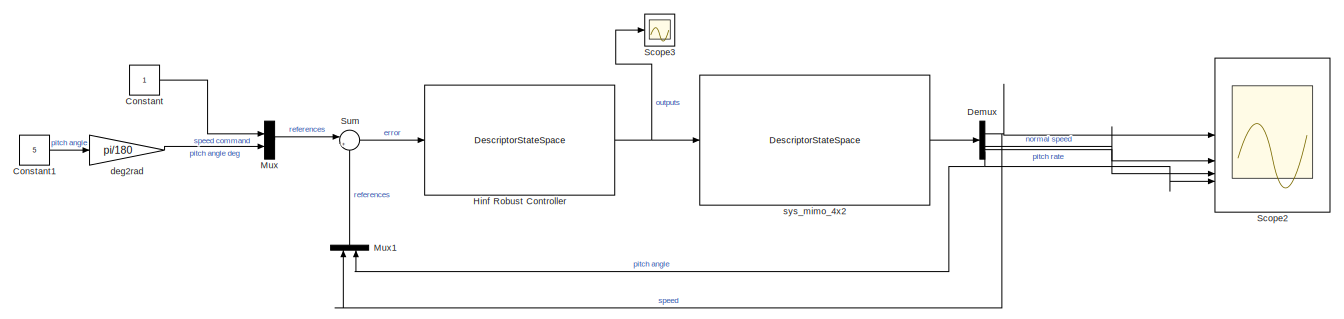
[diagram: root canvas - part 1/2, full width, top band]
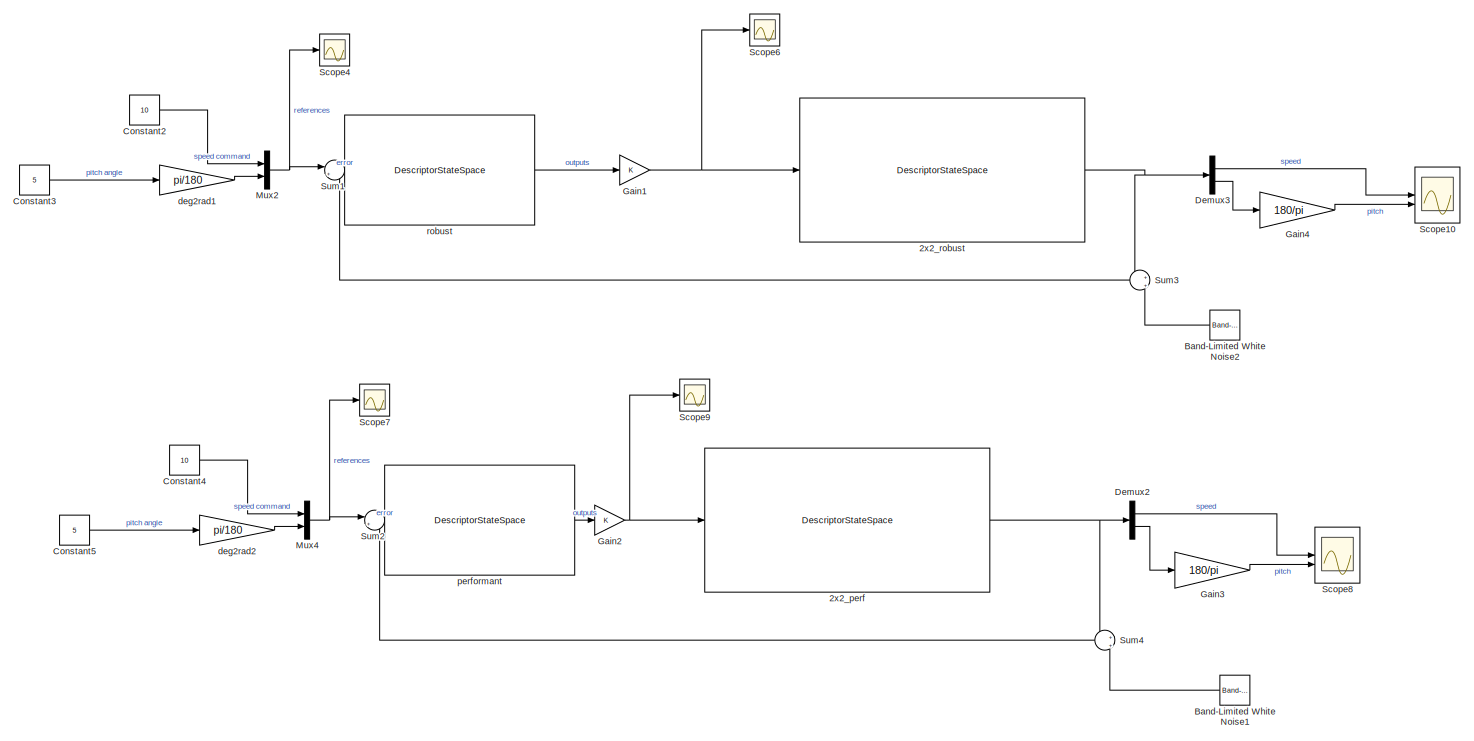
[diagram: root canvas - part 2/2, full width, bottom band]
MODEL slx_d444cae11008
KIND model
CONFIG AbsTol = auto
CONFIG EnableMultiTasking = off
CONFIG FixedStep = auto
CONFIG MaxStep = auto
CONFIG MinStep = auto
CONFIG RelTol = 1e-3
CONFIG SampleTimeConstraint = Unconstrained
CONFIG SolverName = VariableStepAuto
CONFIG StartTime = 0.0
CONFIG StopTime = 150
BLOCK [DescriptorStateSpace] 2x2_perf
  A = sys_mimo_2x2.A
  B = sys_mimo_2x2.B
  C = sys_mimo_2x2.C
  D = sys_mimo_2x2.D
  DirectFeedthrough = False
  E = eye(2)
  InitialCondition = [0,0]
BLOCK [DescriptorStateSpace] 2x2_robust
  A = sys_mimo_2x2.A
  B = sys_mimo_2x2.B
  C = sys_mimo_2x2.C
  D = sys_mimo_2x2.D
  DirectFeedthrough = False
  E = eye(2)
  InitialCondition = [0,0]
BLOCK [Reference] Band-Limited White Noise1  REF=simulink/Sources/Band-Limited
White Noise
  NameLocation = top
  SourceBlock = simulink/Sources/Band-Limited\nWhite Noise
  SourceType = Band-Limited White Noise.
BLOCK [Reference] Band-Limited White Noise2  REF=simulink/Sources/Band-Limited
White Noise
  NameLocation = top
  SourceBlock = simulink/Sources/Band-Limited\nWhite Noise
  SourceType = Band-Limited White Noise.
BLOCK [Constant] Constant
BLOCK [Constant] Constant1
  Value = 5
BLOCK [Constant] Constant2
  Value = 10
BLOCK [Constant] Constant3
  Value = 5
BLOCK [Constant] Constant4
  Value = 10
BLOCK [Constant] Constant5
  Value = 5
BLOCK [Demux] Demux
BLOCK [Demux] Demux2
  Outputs = 2
BLOCK [Demux] Demux3
  Outputs = 2
BLOCK [Gain] Gain1
BLOCK [Gain] Gain2
BLOCK [Gain] Gain3
  Gain = 180/pi
BLOCK [Gain] Gain4
  Gain = 180/pi
BLOCK [DescriptorStateSpace] Hinf Robust Controller
  A = ac.ltf_robust.Gc.A
  B = ac.ltf_robust.Gc.B
  C = ac.ltf_robust.Gc.C
  D = ac.ltf_robust.Gc.D
  DirectFeedthrough = False
  E = eye(6)
  InitialCondition = [0,0, 0,0,0,0]
BLOCK [Mux] Mux
  DisplayOption = signals
  Inputs = 2
BLOCK [Mux] Mux1
  DisplayOption = signals
  Inputs = 2
  NameLocation = right
BLOCK [Mux] Mux2
  DisplayOption = bar
  Inputs = 2
BLOCK [Mux] Mux4
  DisplayOption = bar
  Inputs = 2
BLOCK [Scope] Scope10
  Floating = off
  NumInputPorts = 2
  ScopeSpecificationString = Simulink.scopes.TimeScopeBlockCfg('CurrentConfiguration', extmgr.ConfigurationSet(extmgr.Configuration('Core','General UI',true),extmgr.Configuration('Core','Source UI',true),extmgr.Configuration('Sources','WiredSimulink',true,'DataLoggingVariableName','ScopeData7'),extmgr.Configuration('Visuals','Time Domain',true,'SerializedDisplays',{struct('MinYLimReal','-1.45039','MaxYLimReal','11.74773','YLa...<+1475ch>
BLOCK [Scope] Scope2
  Floating = off
  NumInputPorts = 4
  ScopeSpecificationString = Simulink.scopes.TimeScopeBlockCfg('CurrentConfiguration', extmgr.ConfigurationSet(extmgr.Configuration('Core','General UI',true),extmgr.Configuration('Core','Source UI',true),extmgr.Configuration('Sources','WiredSimulink',true),extmgr.Configuration('Visuals','Time Domain',true,'SerializedDisplays',{struct('MinYLimReal','-17540471857551991122886046431228474215889383845257380748231635369984.00000','...<+2338ch>
BLOCK [Scope] Scope3
  Floating = off
  NumInputPorts = 1
  ScopeSpecificationString = Simulink.scopes.TimeScopeBlockCfg('CurrentConfiguration', extmgr.ConfigurationSet(extmgr.Configuration('Core','General UI',true),extmgr.Configuration('Core','Source UI',true),extmgr.Configuration('Sources','WiredSimulink',true,'DataLoggingVariableName','ScopeData2'),extmgr.Configuration('Visuals','Time Domain',true,'SerializedDisplays',{struct('MinYLimReal','-71739593771524453343435044664171971153...<+2002ch>
BLOCK [Scope] Scope4
  Floating = off
  NumInputPorts = 1
  ScopeSpecificationString = Simulink.scopes.TimeScopeBlockCfg('CurrentConfiguration', extmgr.ConfigurationSet(extmgr.Configuration('Core','General UI',true),extmgr.Configuration('Core','Source UI',true),extmgr.Configuration('Sources','WiredSimulink',true,'DataLoggingVariableName','ScopeData1'),extmgr.Configuration('Visuals','Time Domain',true,'SerializedDisplays',{struct('MinYLimReal','-1.15183','MaxYLimReal','11.23909','YLa...<+1461ch>
BLOCK [Scope] Scope6
  Floating = off
  NumInputPorts = 1
  ScopeSpecificationString = Simulink.scopes.TimeScopeBlockCfg('CurrentConfiguration', extmgr.ConfigurationSet(extmgr.Configuration('Core','General UI',true),extmgr.Configuration('Core','Source UI',true),extmgr.Configuration('Sources','WiredSimulink',true,'DataLoggingVariableName','ScopeData3'),extmgr.Configuration('Visuals','Time Domain',true,'SerializedDisplays',{struct('MinYLimReal','-1.04499','MaxYLimReal','0.18019','YLab...<+1475ch>
BLOCK [Scope] Scope7
  Floating = off
  NumInputPorts = 1
  ScopeSpecificationString = Simulink.scopes.TimeScopeBlockCfg('CurrentConfiguration', extmgr.ConfigurationSet(extmgr.Configuration('Core','General UI',true),extmgr.Configuration('Core','Source UI',true),extmgr.Configuration('Sources','WiredSimulink',true,'DataLoggingVariableName','ScopeData4'),extmgr.Configuration('Visuals','Time Domain',true,'SerializedDisplays',{struct('MinYLimReal','-1.15183','MaxYLimReal','11.23909','YLa...<+1461ch>
BLOCK [Scope] Scope8
  Floating = off
  NumInputPorts = 2
  ScopeSpecificationString = Simulink.scopes.TimeScopeBlockCfg('CurrentConfiguration', extmgr.ConfigurationSet(extmgr.Configuration('Core','General UI',true),extmgr.Configuration('Core','Source UI',true),extmgr.Configuration('Sources','WiredSimulink',true,'DataLoggingVariableName','ScopeData5'),extmgr.Configuration('Visuals','Time Domain',true,'SerializedDisplays',{struct('MinYLimReal','-10.4798','MaxYLimReal','14.77187','YLa...<+1475ch>
BLOCK [Scope] Scope9
  Floating = off
  NumInputPorts = 1
  ScopeSpecificationString = Simulink.scopes.TimeScopeBlockCfg('CurrentConfiguration', extmgr.ConfigurationSet(extmgr.Configuration('Core','General UI',true),extmgr.Configuration('Core','Source UI',true),extmgr.Configuration('Sources','WiredSimulink',true,'DataLoggingVariableName','ScopeData6'),extmgr.Configuration('Visuals','Time Domain',true,'SerializedDisplays',{struct('MinYLimReal','-1.41145','MaxYLimReal','0.61141','YLab...<+1529ch>
BLOCK [Sum] Sum
  Inputs = |+-
BLOCK [Sum] Sum1
  Inputs = |+-
BLOCK [Sum] Sum2
  Inputs = |+-
BLOCK [Sum] Sum3
  Inputs = +|+
  NameLocation = top
BLOCK [Sum] Sum4
  Inputs = +|+
  NameLocation = top
BLOCK [Gain] deg2rad
  Gain = pi/180
BLOCK [Gain] deg2rad1
  Gain = pi/180
BLOCK [Gain] deg2rad2
  Gain = pi/180
BLOCK [DescriptorStateSpace] performant
  A = ac.ltf_performant.Gc.A
  B = ac.ltf_performant.Gc.B
  C = ac.ltf_performant.Gc.C
  D = ac.ltf_performant.Gc.D
  DirectFeedthrough = False
  E = eye(6)
  InitialCondition = [0,0, 0,0,0,0]
BLOCK [DescriptorStateSpace] robust
  A = ac.ltf_robust.Gc.A
  B = ac.ltf_robust.Gc.B
  C = ac.ltf_robust.Gc.C
  D = ac.ltf_robust.Gc.D
  DirectFeedthrough = False
  E = eye(6)
  InitialCondition = [0,0, 0,0,0,0]
BLOCK [DescriptorStateSpace] sys_mimo_4x2
  A = sys_mimo_4x2.A
  B = sys_mimo_4x2.B
  C = sys_mimo_4x2.C
  D = sys_mimo_4x2.D
  DirectFeedthrough = False
  E = eye(4)
  InitialCondition = [0,0,0, 0]
NET 2x2_perf:1 -> Demux2:1, Sum4:1
NET 2x2_robust:1 -> Demux3:1, Sum3:1
LINE Band-Limited White Noise1:1 -> Sum4:2
LINE Band-Limited White Noise2:1 -> Sum3:2
LINE Constant1:1 -> deg2rad:1
LINE Constant2:1 -> Mux2:1
LINE Constant3:1 -> deg2rad1:1
LINE Constant4:1 -> Mux4:1
LINE Constant5:1 -> deg2rad2:1
LINE Constant:1 -> Mux:1
LINE Demux2:1 -> Scope8:1
LINE Demux2:2 -> Gain3:1
LINE Demux3:1 -> Scope10:1
LINE Demux3:2 -> Gain4:1
NET Demux:1 -> Mux1:1, Scope2:1
LINE Demux:2 -> Scope2:2
LINE Demux:3 -> Scope2:3
NET Demux:4 -> Mux1:2, Scope2:4
NET Gain1:1 -> 2x2_robust:1, Scope6:1
NET Gain2:1 -> 2x2_perf:1, Scope9:1
LINE Gain3:1 -> Scope8:2
LINE Gain4:1 -> Scope10:2
NET Hinf Robust Controller:1 -> Scope3:1, sys_mimo_4x2:1
LINE Mux1:1 -> Sum:2
NET Mux2:1 -> Scope4:1, Sum1:1
NET Mux4:1 -> Scope7:1, Sum2:1
LINE Mux:1 -> Sum:1
LINE Sum1:1 -> robust:1
LINE Sum2:1 -> performant:1
LINE Sum3:1 -> Sum1:2
LINE Sum4:1 -> Sum2:2
LINE Sum:1 -> Hinf Robust Controller:1
LINE deg2rad1:1 -> Mux2:2
LINE deg2rad2:1 -> Mux4:2
LINE deg2rad:1 -> Mux:2
LINE performant:1 -> Gain2:1
LINE robust:1 -> Gain1:1
LINE sys_mimo_4x2:1 -> Demux:1
note: NET lines group one-source signal fan-out (src -> all destinations, sorted); 1:1 wires keep LINE
